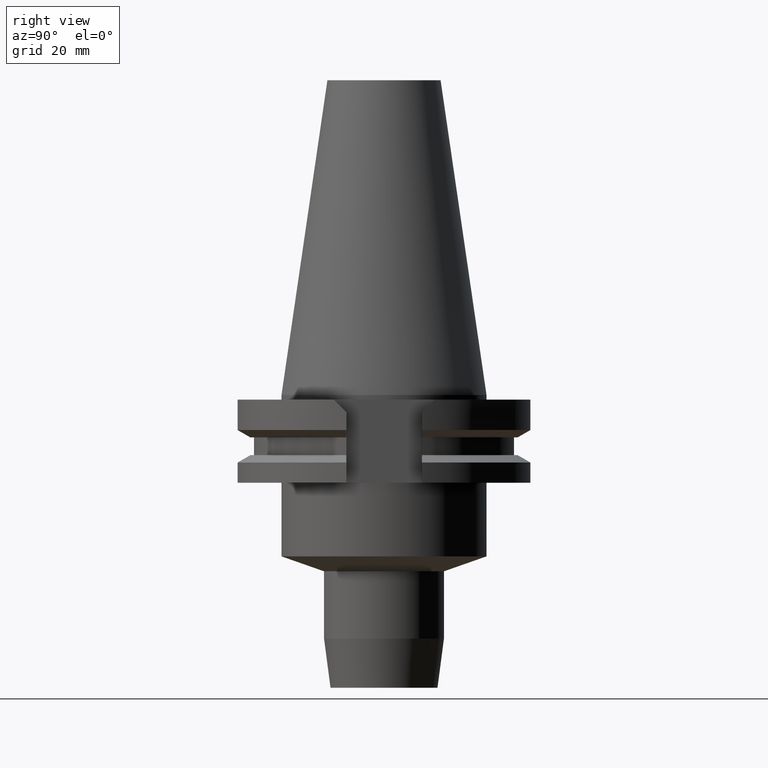
[diagram: clean part render]
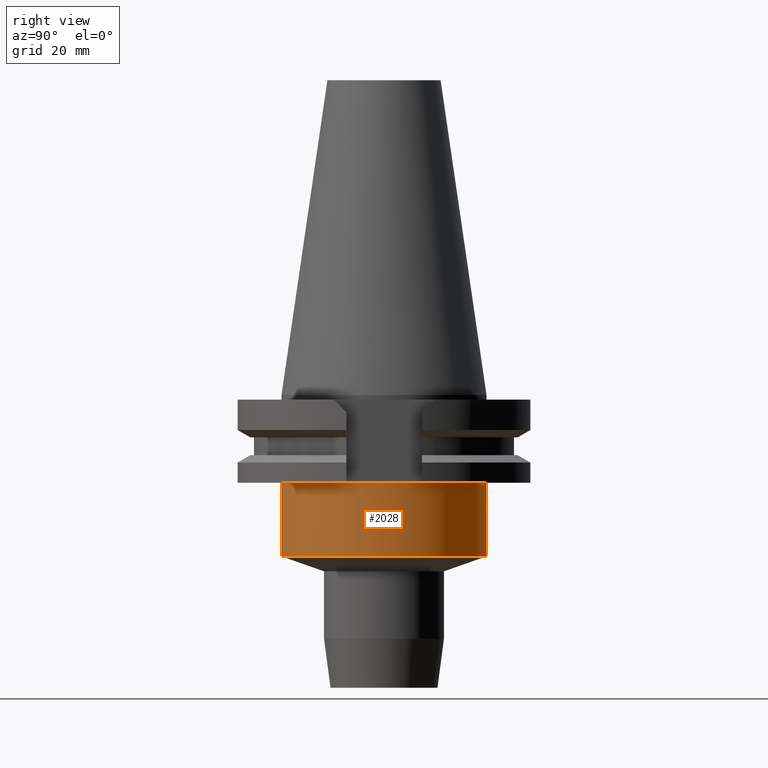
[diagram: same view with one face highlighted and labeled with its STEP entity id]
A machine part, right view. The second image highlights one B-rep face of the part: STEP entity #2028.
In plain terms, the highlighted cylindrical surface (partial cylindrical patch) has radius 22.225 mm, axis along (0, 0, 1).
Its self-contained STEP definition (entity closure, byte-faithful):
#227=CARTESIAN_POINT('',(0.E0,0.E0,-1.905E1));
#228=DIRECTION('',(0.E0,0.E0,-1.E0));
#229=DIRECTION('',(0.E0,1.E0,0.E0));
#230=AXIS2_PLACEMENT_3D('',#227,#228,#229);
#816=DIRECTION('',(0.E0,-3.118369373242E-14,-1.E0));
#817=VECTOR('',#816,1.595E1);
#818=CARTESIAN_POINT('',(0.E0,-2.2225E1,-1.905E1));
#819=LINE('',#818,#817);
#823=DIRECTION('',(0.E0,3.118369373242E-14,-1.E0));
#824=VECTOR('',#823,1.595E1);
#825=CARTESIAN_POINT('',(0.E0,2.2225E1,-1.905E1));
#826=LINE('',#825,#824);
#845=CARTESIAN_POINT('',(0.E0,0.E0,-3.5E1));
#846=DIRECTION('',(0.E0,0.E0,1.E0));
#847=DIRECTION('',(0.E0,-1.E0,0.E0));
#848=AXIS2_PLACEMENT_3D('',#845,#846,#847);
#1268=CARTESIAN_POINT('',(0.E0,-2.2225E1,-1.905E1));
#1269=CARTESIAN_POINT('',(0.E0,2.2225E1,-1.905E1));
#1270=VERTEX_POINT('',#1268);
#1271=VERTEX_POINT('',#1269);
#1272=CARTESIAN_POINT('',(0.E0,2.2225E1,-3.5E1));
#1273=VERTEX_POINT('',#1272);
#1274=CARTESIAN_POINT('',(0.E0,-2.2225E1,-3.5E1));
#1275=VERTEX_POINT('',#1274);
#2016=CARTESIAN_POINT('',(0.E0,0.E0,-7.00875E1));
#2017=DIRECTION('',(0.E0,0.E0,1.E0));
#2018=DIRECTION('',(0.E0,1.E0,0.E0));
#2019=AXIS2_PLACEMENT_3D('',#2016,#2017,#2018);
#2020=CYLINDRICAL_SURFACE('',#2019,2.2225E1);
#2021=ORIENTED_EDGE('',*,*,#2006,.T.);
#2023=ORIENTED_EDGE('',*,*,#2022,.F.);
#2024=ORIENTED_EDGE('',*,*,#2009,.F.);
#2025=ORIENTED_EDGE('',*,*,#1554,.F.);
#2026=EDGE_LOOP('',(#2021,#2023,#2024,#2025));
#2027=FACE_OUTER_BOUND('',#2026,.F.);
#231=CIRCLE('',#230,2.2225E1);
#849=CIRCLE('',#848,2.2225E1);
#1554=EDGE_CURVE('',#1271,#1270,#231,.T.);
#2006=EDGE_CURVE('',#1271,#1273,#826,.T.);
#2009=EDGE_CURVE('',#1270,#1275,#819,.T.);
#2022=EDGE_CURVE('',#1275,#1273,#849,.T.);
#2028=ADVANCED_FACE('',(#2027),#2020,.T.);